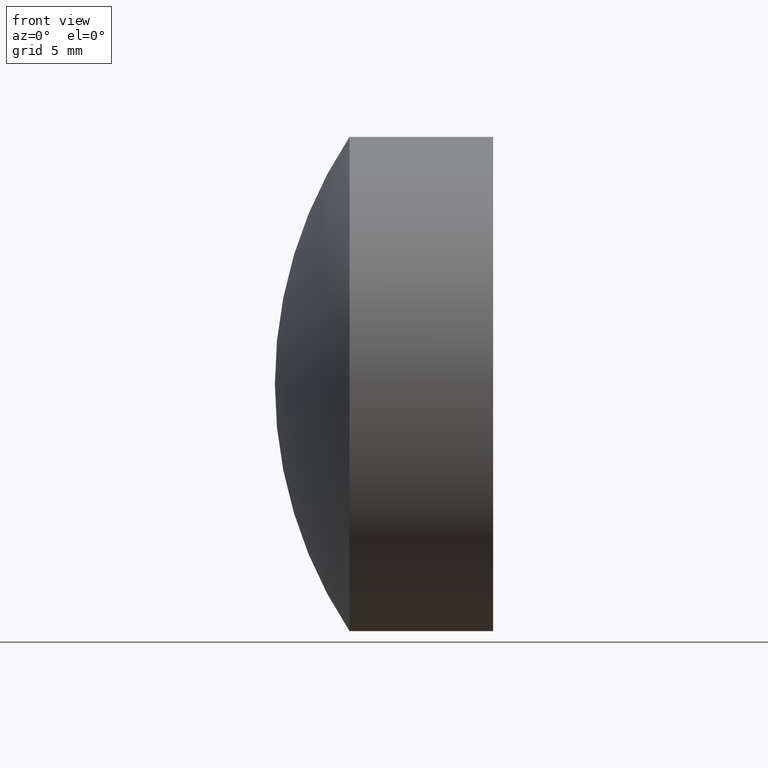
[diagram: clean part render]
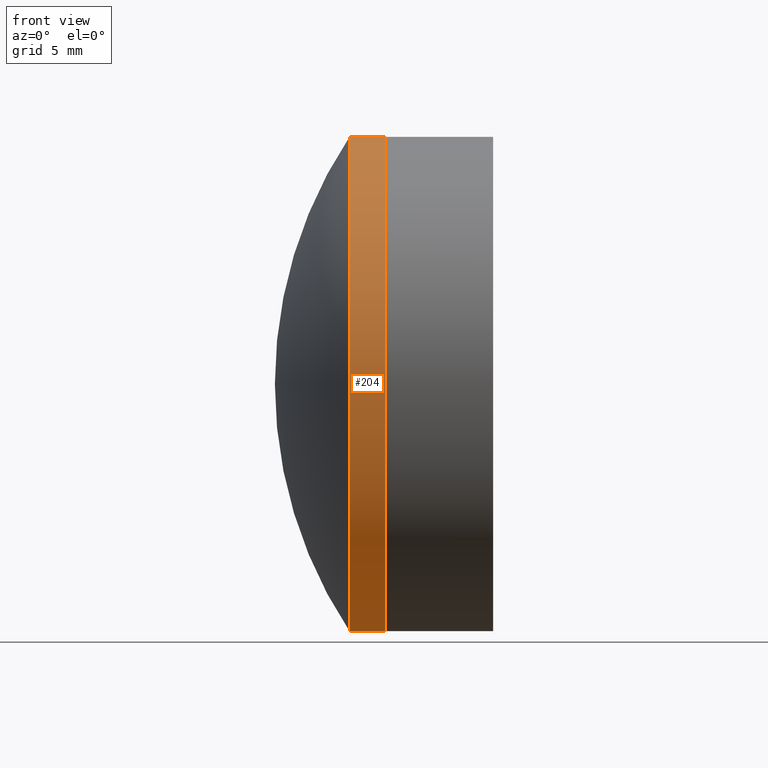
[diagram: same view with one face highlighted and labeled with its STEP entity id]
A machine part, front view. The second image highlights one B-rep face of the part: STEP entity #204.
In plain terms, the highlighted cylindrical surface (partial cylindrical patch) has radius 12.7 mm, axis along (-1, -0, -0).
Its self-contained STEP definition (entity closure, byte-faithful):
#7 = VERTEX_POINT ( 'NONE', #99 ) ;
#20 = VERTEX_POINT ( 'NONE', #103 ) ;
#30 = CARTESIAN_POINT ( 'NONE',  ( 35.79561500476388900, 0.0000000000000000000, 0.0000000000000000000 ) ) ;
#31 = EDGE_CURVE ( 'NONE', #20, #146, #97, .T. ) ;
#44 = CARTESIAN_POINT ( 'NONE',  ( 35.79561500476388900, 0.0000000000000000000, 12.69999999999999600 ) ) ;
#48 = EDGE_CURVE ( 'NONE', #182, #7, #51, .T. ) ;
#51 = LINE ( 'NONE', #248, #313 ) ;
#63 = AXIS2_PLACEMENT_3D ( 'NONE', #273, #337, #234 ) ;
#81 = CARTESIAN_POINT ( 'NONE',  ( 37.62897246326265600, 0.0000000000000000000, 0.0000000000000000000 ) ) ;
#83 = AXIS2_PLACEMENT_3D ( 'NONE', #81, #117, #148 ) ;
#84 = DIRECTION ( 'NONE',  ( -1.000000000000000000, -0.0000000000000000000, -0.0000000000000000000 ) ) ;
#93 = ORIENTED_EDGE ( 'NONE', *, *, #336, .F. ) ;
#97 = LINE ( 'NONE', #105, #110 ) ;
#99 = CARTESIAN_POINT ( 'NONE',  ( 35.79561500476388900, 1.555301434917138000E-015, -12.69999999999999600 ) ) ;
#103 = CARTESIAN_POINT ( 'NONE',  ( 37.62897246326265600, 0.0000000000000000000, 12.69999999999999900 ) ) ;
#104 = CIRCLE ( 'NONE', #324, 12.69999999999999900 ) ;
#105 = CARTESIAN_POINT ( 'NONE',  ( -0.8160621761658039000, 0.0000000000000000000, 12.69999999999999900 ) ) ;
#110 = VECTOR ( 'NONE', #346, 1000.000000000000000 ) ;
#117 = DIRECTION ( 'NONE',  ( -1.000000000000000000, -0.0000000000000000000, -0.0000000000000000000 ) ) ;
#138 = FACE_OUTER_BOUND ( 'NONE', #256, .T. ) ;
#146 = VERTEX_POINT ( 'NONE', #44 ) ;
#147 = ORIENTED_EDGE ( 'NONE', *, *, #48, .F. ) ;
#148 = DIRECTION ( 'NONE',  ( 0.0000000000000000000, 0.0000000000000000000, 1.000000000000000000 ) ) ;
#151 = ORIENTED_EDGE ( 'NONE', *, *, #31, .T. ) ;
#180 = CIRCLE ( 'NONE', #83, 12.69999999999999900 ) ;
#182 = VERTEX_POINT ( 'NONE', #279 ) ;
#188 = CYLINDRICAL_SURFACE ( 'NONE', #63, 12.69999999999999900 ) ;
#204 = ADVANCED_FACE ( 'NONE', ( #138 ), #188, .T. ) ;
#216 = ORIENTED_EDGE ( 'NONE', *, *, #299, .T. ) ;
#218 = DIRECTION ( 'NONE',  ( -1.000000000000000000, -0.0000000000000000000, -0.0000000000000000000 ) ) ;
#224 = DIRECTION ( 'NONE',  ( 0.0000000000000000000, 0.0000000000000000000, 1.000000000000000000 ) ) ;
#234 = DIRECTION ( 'NONE',  ( 0.0000000000000000000, 0.0000000000000000000, 1.000000000000000000 ) ) ;
#248 = CARTESIAN_POINT ( 'NONE',  ( -0.8160621761658039000, 1.555301434917138400E-015, -12.69999999999999900 ) ) ;
#256 = EDGE_LOOP ( 'NONE', ( #147, #216, #151, #93 ) ) ;
#273 = CARTESIAN_POINT ( 'NONE',  ( -0.8160621761658039000, 0.0000000000000000000, 0.0000000000000000000 ) ) ;
#279 = CARTESIAN_POINT ( 'NONE',  ( 37.62897246326265600, 1.555301434917138400E-015, -12.69999999999999900 ) ) ;
#299 = EDGE_CURVE ( 'NONE', #182, #20, #180, .T. ) ;
#313 = VECTOR ( 'NONE', #84, 1000.000000000000000 ) ;
#324 = AXIS2_PLACEMENT_3D ( 'NONE', #30, #218, #224 ) ;
#336 = EDGE_CURVE ( 'NONE', #7, #146, #104, .T. ) ;
#337 = DIRECTION ( 'NONE',  ( -1.000000000000000000, -0.0000000000000000000, -0.0000000000000000000 ) ) ;
#346 = DIRECTION ( 'NONE',  ( -1.000000000000000000, -0.0000000000000000000, -0.0000000000000000000 ) ) ;